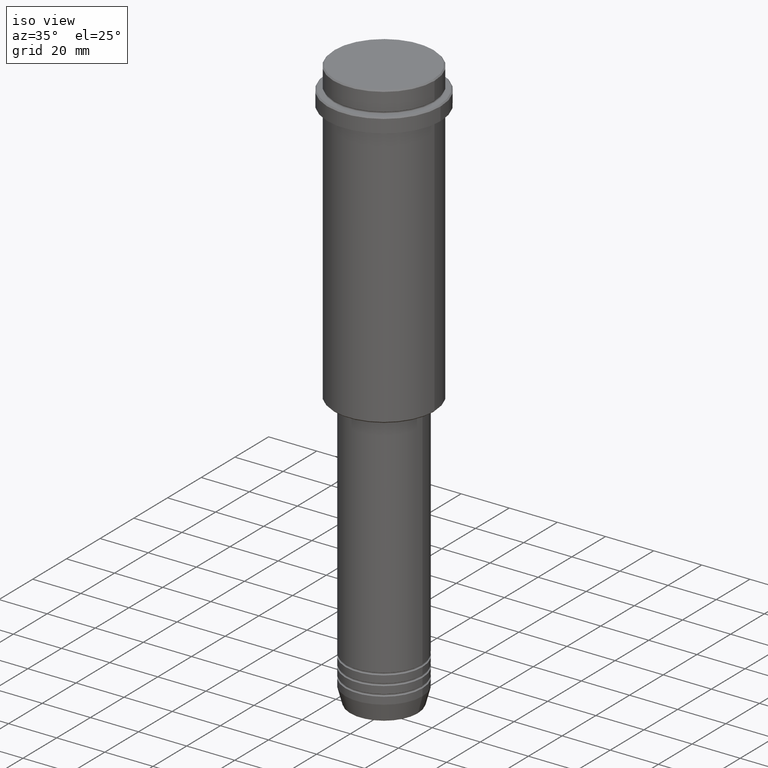
[diagram: clean part render]
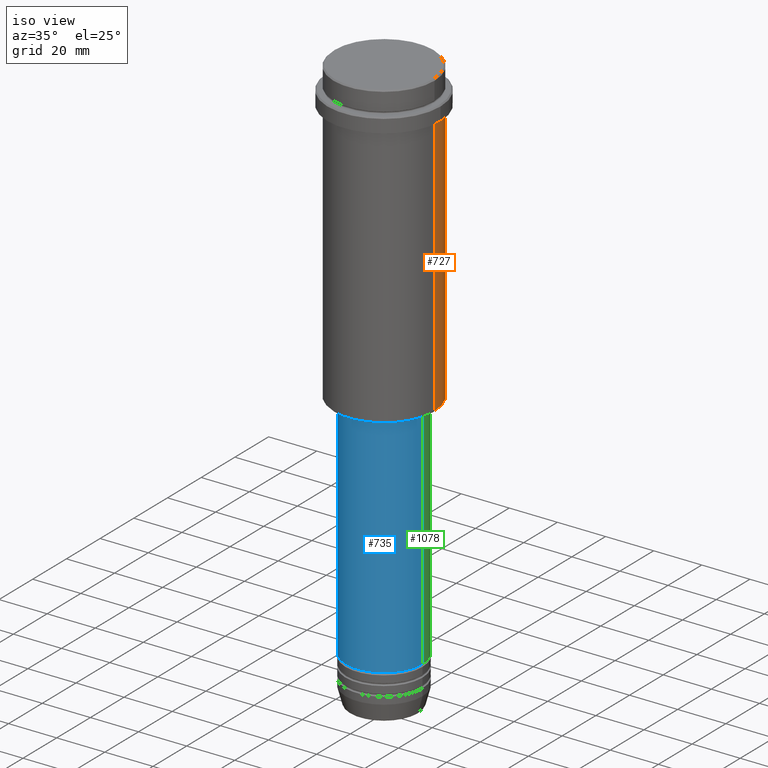
[diagram: same view with three faces highlighted in distinct colors, each labeled with its STEP entity id]
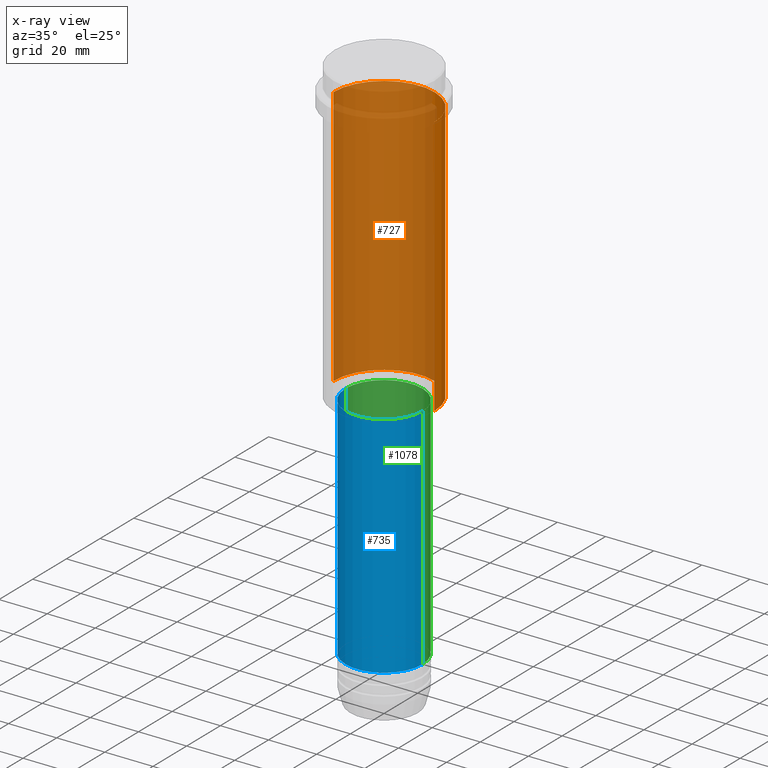
[diagram: x-ray of the same camera — body ghosted, the three highlighted faces saturated]
A machine part, iso view with three faces highlighted in distinct colors.
The next image is the same camera in x-ray (body ghosted, the three faces saturated) — at least one of them is partly hidden behind the body in this view.
Their STEP definitions:

[orange] entity #727 — the highlighted cylindrical surface (partial cylindrical patch) has radius 21 mm, axis along (-0, -0, 1).
#5 = VERTEX_POINT ( 'NONE', #51 ) ;
#51 = CARTESIAN_POINT ( 'NONE',  ( 21.00000000000000000, 0.000000000000000000, -124.4999999999999289 ) ) ;
#85 = CARTESIAN_POINT ( 'NONE',  ( -21.00000000000000000, 2.571758278209441661E-15, 0.000000000000000000 ) ) ;
#95 = CARTESIAN_POINT ( 'NONE',  ( 21.00000000000000000, 0.000000000000000000, -16.00000000000000355 ) ) ;
#153 = AXIS2_PLACEMENT_3D ( 'NONE', #422, #971, #438 ) ;
#160 = EDGE_CURVE ( 'NONE', #5, #1222, #477, .T. ) ;
#195 = DIRECTION ( 'NONE',  ( -0.000000000000000000, -0.000000000000000000, 1.000000000000000000 ) ) ;
#216 = ORIENTED_EDGE ( 'NONE', *, *, #160, .F. ) ;
#310 = CIRCLE ( 'NONE', #910, 21.00000000000000000 ) ;
#330 = VERTEX_POINT ( 'NONE', #848 ) ;
#345 = ORIENTED_EDGE ( 'NONE', *, *, #618, .F. ) ;
#347 = ORIENTED_EDGE ( 'NONE', *, *, #1032, .T. ) ;
#404 = DIRECTION ( 'NONE',  ( 1.000000000000000000, 0.000000000000000000, 0.000000000000000000 ) ) ;
#422 = CARTESIAN_POINT ( 'NONE',  ( 0.000000000000000000, 0.000000000000000000, -124.4999999999999289 ) ) ;
#438 = DIRECTION ( 'NONE',  ( -1.000000000000000000, 0.000000000000000000, 0.000000000000000000 ) ) ;
#477 = LINE ( 'NONE', #588, #797 ) ;
#493 = ORIENTED_EDGE ( 'NONE', *, *, #639, .T. ) ;
#496 = DIRECTION ( 'NONE',  ( 1.000000000000000000, 0.000000000000000000, 0.000000000000000000 ) ) ;
#507 = AXIS2_PLACEMENT_3D ( 'NONE', #1035, #1359, #496 ) ;
#509 = DIRECTION ( 'NONE',  ( -0.000000000000000000, -0.000000000000000000, 1.000000000000000000 ) ) ;
#523 = CARTESIAN_POINT ( 'NONE',  ( 0.000000000000000000, 0.000000000000000000, -16.00000000000000355 ) ) ;
#574 = CARTESIAN_POINT ( 'NONE',  ( -21.00000000000000000, 2.571758278209441661E-15, -16.00000000000000355 ) ) ;
#588 = CARTESIAN_POINT ( 'NONE',  ( 21.00000000000000000, 0.000000000000000000, 0.000000000000000000 ) ) ;
#618 = EDGE_CURVE ( 'NONE', #1222, #1339, #310, .T. ) ;
#639 = EDGE_CURVE ( 'NONE', #330, #1339, #1284, .T. ) ;
#727 = ADVANCED_FACE ( 'NONE', ( #1337 ), #1370, .T. ) ;
#797 = VECTOR ( 'NONE', #1271, 1000.000000000000000 ) ;
#848 = CARTESIAN_POINT ( 'NONE',  ( -21.00000000000000000, 2.571758278209441661E-15, -124.4999999999999289 ) ) ;
#910 = AXIS2_PLACEMENT_3D ( 'NONE', #523, #195, #404 ) ;
#923 = EDGE_LOOP ( 'NONE', ( #347, #493, #345, #216 ) ) ;
#971 = DIRECTION ( 'NONE',  ( -0.000000000000000000, -0.000000000000000000, 1.000000000000000000 ) ) ;
#1032 = EDGE_CURVE ( 'NONE', #5, #330, #1386, .T. ) ;
#1035 = CARTESIAN_POINT ( 'NONE',  ( 0.000000000000000000, 0.000000000000000000, 0.000000000000000000 ) ) ;
#1118 = VECTOR ( 'NONE', #509, 1000.000000000000000 ) ;
#1222 = VERTEX_POINT ( 'NONE', #95 ) ;
#1271 = DIRECTION ( 'NONE',  ( -0.000000000000000000, -0.000000000000000000, 1.000000000000000000 ) ) ;
#1284 = LINE ( 'NONE', #85, #1118 ) ;
#1337 = FACE_OUTER_BOUND ( 'NONE', #923, .T. ) ;
#1339 = VERTEX_POINT ( 'NONE', #574 ) ;
#1359 = DIRECTION ( 'NONE',  ( -0.000000000000000000, -0.000000000000000000, 1.000000000000000000 ) ) ;
#1370 = CYLINDRICAL_SURFACE ( 'NONE', #507, 21.00000000000000000 ) ;
#1386 = CIRCLE ( 'NONE', #153, 21.00000000000000000 ) ;

[blue] entity #735 — the highlighted cylindrical surface (partial cylindrical patch) has radius 16 mm, axis along (-0, -0, 1).
#13 = VECTOR ( 'NONE', #1224, 1000.000000000000000 ) ;
#14 = CARTESIAN_POINT ( 'NONE',  ( -16.00000000000000000, 1.959434878635765131E-15, 0.000000000000000000 ) ) ;
#37 = CARTESIAN_POINT ( 'NONE',  ( 0.000000000000000000, 0.000000000000000000, 0.000000000000000000 ) ) ;
#50 = AXIS2_PLACEMENT_3D ( 'NONE', #186, #1175, #612 ) ;
#79 = CARTESIAN_POINT ( 'NONE',  ( -16.00000000000000355, 1.959434878635765526E-15, -126.0000000000000000 ) ) ;
#138 = ORIENTED_EDGE ( 'NONE', *, *, #1171, .F. ) ;
#152 = FACE_OUTER_BOUND ( 'NONE', #698, .T. ) ;
#186 = CARTESIAN_POINT ( 'NONE',  ( 0.000000000000000000, 0.000000000000000000, -126.0000000000000000 ) ) ;
#204 = CARTESIAN_POINT ( 'NONE',  ( 0.000000000000000000, 0.000000000000000000, -220.9999999999998579 ) ) ;
#225 = EDGE_CURVE ( 'NONE', #571, #316, #558, .T. ) ;
#265 = DIRECTION ( 'NONE',  ( -0.000000000000000000, -0.000000000000000000, 1.000000000000000000 ) ) ;
#302 = CARTESIAN_POINT ( 'NONE',  ( 16.00000000000000000, 0.000000000000000000, -220.9999999999998579 ) ) ;
#305 = CARTESIAN_POINT ( 'NONE',  ( -16.00000000000000000, 1.959434878635765131E-15, -220.9999999999998579 ) ) ;
#316 = VERTEX_POINT ( 'NONE', #317 ) ;
#317 = CARTESIAN_POINT ( 'NONE',  ( 16.00000000000000355, 0.000000000000000000, -126.0000000000000000 ) ) ;
#337 = ORIENTED_EDGE ( 'NONE', *, *, #225, .T. ) ;
#340 = VERTEX_POINT ( 'NONE', #305 ) ;
#350 = AXIS2_PLACEMENT_3D ( 'NONE', #204, #1308, #861 ) ;
#357 = VERTEX_POINT ( 'NONE', #79 ) ;
#379 = CARTESIAN_POINT ( 'NONE',  ( 16.00000000000000000, 0.000000000000000000, 0.000000000000000000 ) ) ;
#381 = CYLINDRICAL_SURFACE ( 'NONE', #1322, 16.00000000000000000 ) ;
#416 = EDGE_CURVE ( 'NONE', #357, #316, #1358, .T. ) ;
#497 = ORIENTED_EDGE ( 'NONE', *, *, #540, .T. ) ;
#540 = EDGE_CURVE ( 'NONE', #340, #571, #1361, .T. ) ;
#558 = LINE ( 'NONE', #379, #1276 ) ;
#571 = VERTEX_POINT ( 'NONE', #302 ) ;
#612 = DIRECTION ( 'NONE',  ( 1.000000000000000000, 0.000000000000000000, 0.000000000000000000 ) ) ;
#666 = ORIENTED_EDGE ( 'NONE', *, *, #416, .F. ) ;
#698 = EDGE_LOOP ( 'NONE', ( #138, #497, #337, #666 ) ) ;
#735 = ADVANCED_FACE ( 'NONE', ( #152 ), #381, .T. ) ;
#785 = LINE ( 'NONE', #14, #13 ) ;
#861 = DIRECTION ( 'NONE',  ( 1.000000000000000000, 0.000000000000000000, 0.000000000000000000 ) ) ;
#1171 = EDGE_CURVE ( 'NONE', #340, #357, #785, .T. ) ;
#1175 = DIRECTION ( 'NONE',  ( -0.000000000000000000, -0.000000000000000000, 1.000000000000000000 ) ) ;
#1223 = DIRECTION ( 'NONE',  ( -0.000000000000000000, -0.000000000000000000, 1.000000000000000000 ) ) ;
#1224 = DIRECTION ( 'NONE',  ( -0.000000000000000000, -0.000000000000000000, 1.000000000000000000 ) ) ;
#1260 = DIRECTION ( 'NONE',  ( 1.000000000000000000, 0.000000000000000000, 0.000000000000000000 ) ) ;
#1276 = VECTOR ( 'NONE', #1223, 1000.000000000000000 ) ;
#1308 = DIRECTION ( 'NONE',  ( -0.000000000000000000, -0.000000000000000000, 1.000000000000000000 ) ) ;
#1322 = AXIS2_PLACEMENT_3D ( 'NONE', #37, #265, #1260 ) ;
#1358 = CIRCLE ( 'NONE', #50, 16.00000000000000355 ) ;
#1361 = CIRCLE ( 'NONE', #350, 16.00000000000000000 ) ;

[green] entity #1078 — the highlighted cylindrical surface (partial cylindrical patch) has radius 16 mm, axis along (-0, -0, 1).
#13 = VECTOR ( 'NONE', #1224, 1000.000000000000000 ) ;
#14 = CARTESIAN_POINT ( 'NONE',  ( -16.00000000000000000, 1.959434878635765131E-15, 0.000000000000000000 ) ) ;
#79 = CARTESIAN_POINT ( 'NONE',  ( -16.00000000000000355, 1.959434878635765526E-15, -126.0000000000000000 ) ) ;
#117 = CARTESIAN_POINT ( 'NONE',  ( 0.000000000000000000, 0.000000000000000000, -220.9999999999998579 ) ) ;
#225 = EDGE_CURVE ( 'NONE', #571, #316, #558, .T. ) ;
#280 = ORIENTED_EDGE ( 'NONE', *, *, #225, .F. ) ;
#302 = CARTESIAN_POINT ( 'NONE',  ( 16.00000000000000000, 0.000000000000000000, -220.9999999999998579 ) ) ;
#305 = CARTESIAN_POINT ( 'NONE',  ( -16.00000000000000000, 1.959434878635765131E-15, -220.9999999999998579 ) ) ;
#316 = VERTEX_POINT ( 'NONE', #317 ) ;
#317 = CARTESIAN_POINT ( 'NONE',  ( 16.00000000000000355, 0.000000000000000000, -126.0000000000000000 ) ) ;
#334 = CARTESIAN_POINT ( 'NONE',  ( 0.000000000000000000, 0.000000000000000000, -126.0000000000000000 ) ) ;
#340 = VERTEX_POINT ( 'NONE', #305 ) ;
#344 = DIRECTION ( 'NONE',  ( 1.000000000000000000, 0.000000000000000000, 0.000000000000000000 ) ) ;
#353 = AXIS2_PLACEMENT_3D ( 'NONE', #334, #1336, #994 ) ;
#357 = VERTEX_POINT ( 'NONE', #79 ) ;
#369 = ORIENTED_EDGE ( 'NONE', *, *, #1171, .T. ) ;
#379 = CARTESIAN_POINT ( 'NONE',  ( 16.00000000000000000, 0.000000000000000000, 0.000000000000000000 ) ) ;
#450 = CARTESIAN_POINT ( 'NONE',  ( 0.000000000000000000, 0.000000000000000000, 0.000000000000000000 ) ) ;
#468 = AXIS2_PLACEMENT_3D ( 'NONE', #117, #1134, #344 ) ;
#558 = LINE ( 'NONE', #379, #1276 ) ;
#571 = VERTEX_POINT ( 'NONE', #302 ) ;
#654 = CIRCLE ( 'NONE', #468, 16.00000000000000000 ) ;
#755 = CYLINDRICAL_SURFACE ( 'NONE', #1253, 16.00000000000000000 ) ;
#783 = DIRECTION ( 'NONE',  ( -0.000000000000000000, -0.000000000000000000, 1.000000000000000000 ) ) ;
#785 = LINE ( 'NONE', #14, #13 ) ;
#900 = EDGE_LOOP ( 'NONE', ( #1343, #369, #1133, #280 ) ) ;
#985 = DIRECTION ( 'NONE',  ( 1.000000000000000000, 0.000000000000000000, 0.000000000000000000 ) ) ;
#994 = DIRECTION ( 'NONE',  ( 1.000000000000000000, 0.000000000000000000, 0.000000000000000000 ) ) ;
#998 = FACE_OUTER_BOUND ( 'NONE', #900, .T. ) ;
#1078 = ADVANCED_FACE ( 'NONE', ( #998 ), #755, .T. ) ;
#1133 = ORIENTED_EDGE ( 'NONE', *, *, #1362, .F. ) ;
#1134 = DIRECTION ( 'NONE',  ( -0.000000000000000000, -0.000000000000000000, 1.000000000000000000 ) ) ;
#1171 = EDGE_CURVE ( 'NONE', #340, #357, #785, .T. ) ;
#1223 = DIRECTION ( 'NONE',  ( -0.000000000000000000, -0.000000000000000000, 1.000000000000000000 ) ) ;
#1224 = DIRECTION ( 'NONE',  ( -0.000000000000000000, -0.000000000000000000, 1.000000000000000000 ) ) ;
#1243 = EDGE_CURVE ( 'NONE', #571, #340, #654, .T. ) ;
#1253 = AXIS2_PLACEMENT_3D ( 'NONE', #450, #783, #985 ) ;
#1276 = VECTOR ( 'NONE', #1223, 1000.000000000000000 ) ;
#1281 = CIRCLE ( 'NONE', #353, 16.00000000000000355 ) ;
#1336 = DIRECTION ( 'NONE',  ( -0.000000000000000000, -0.000000000000000000, 1.000000000000000000 ) ) ;
#1343 = ORIENTED_EDGE ( 'NONE', *, *, #1243, .T. ) ;
#1362 = EDGE_CURVE ( 'NONE', #316, #357, #1281, .T. ) ;